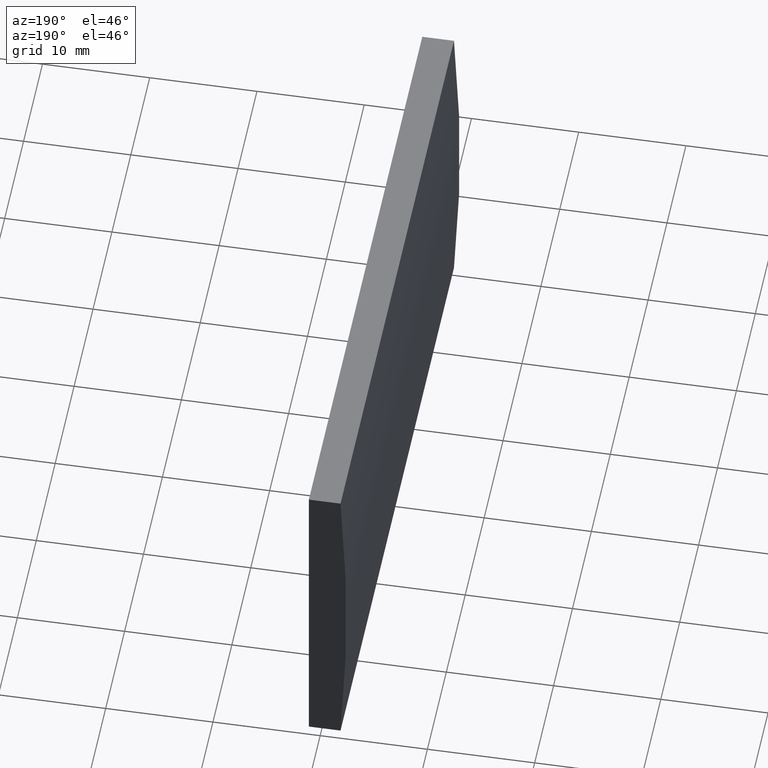
[diagram: clean part render]
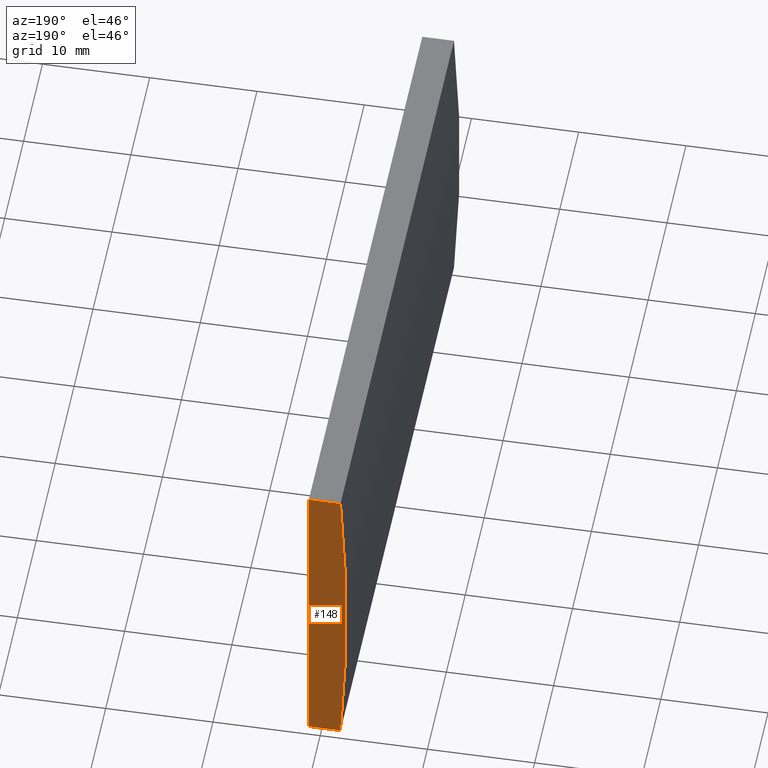
[diagram: same view with one face highlighted and labeled with its STEP entity id]
A machine part, auxiliary view. The second image highlights one B-rep face of the part: STEP entity #148.
In plain terms, the highlighted planar face has unit normal (0, 1, 0).
Its self-contained STEP definition (entity closure, byte-faithful):
#1 = CARTESIAN_POINT ( 'NONE',  ( -201.9000743854763000, 60.00000000000000000, 15.00000000000000000 ) ) ;
#17 = CARTESIAN_POINT ( 'NONE',  ( 4.355204334851265500, 60.00000000000000000, 4.286263797015675000E-017 ) ) ;
#22 = VERTEX_POINT ( 'NONE', #185 ) ;
#24 = PLANE ( 'NONE',  #34 ) ;
#27 = CARTESIAN_POINT ( 'NONE',  ( -201.9000743854763000, 60.00000000000000000, -15.00000000000000000 ) ) ;
#29 = CARTESIAN_POINT ( 'NONE',  ( -198.9447956651487500, 60.00000000000000000, -15.00000000000000400 ) ) ;
#33 = DIRECTION ( 'NONE',  ( 0.0000000000000000000, 1.000000000000000000, 0.0000000000000000000 ) ) ;
#34 = AXIS2_PLACEMENT_3D ( 'NONE', #17, #110, #147 ) ;
#36 = DIRECTION ( 'NONE',  ( -0.0000000000000000000, -0.0000000000000000000, -1.000000000000000000 ) ) ;
#54 = DIRECTION ( 'NONE',  ( 1.000000000000000000, 0.0000000000000000000, 0.0000000000000000000 ) ) ;
#58 = EDGE_CURVE ( 'NONE', #97, #139, #92, .T. ) ;
#67 = DIRECTION ( 'NONE',  ( 0.0000000000000000000, 0.0000000000000000000, 1.000000000000000000 ) ) ;
#81 = CARTESIAN_POINT ( 'NONE',  ( -198.9447956651487500, 60.00000000000000000, 15.00000000000000000 ) ) ;
#83 = AXIS2_PLACEMENT_3D ( 'NONE', #137, #33, #67 ) ;
#85 = ORIENTED_EDGE ( 'NONE', *, *, #95, .T. ) ;
#92 = LINE ( 'NONE', #188, #141 ) ;
#95 = EDGE_CURVE ( 'NONE', #139, #22, #198, .T. ) ;
#96 = ORIENTED_EDGE ( 'NONE', *, *, #58, .T. ) ;
#97 = VERTEX_POINT ( 'NONE', #1 ) ;
#100 = EDGE_LOOP ( 'NONE', ( #101, #96, #85, #161 ) ) ;
#101 = ORIENTED_EDGE ( 'NONE', *, *, #158, .T. ) ;
#103 = LINE ( 'NONE', #200, #142 ) ;
#105 = FACE_OUTER_BOUND ( 'NONE', #100, .T. ) ;
#110 = DIRECTION ( 'NONE',  ( 0.0000000000000000000, 1.000000000000000000, 0.0000000000000000000 ) ) ;
#133 = VERTEX_POINT ( 'NONE', #27 ) ;
#137 = CARTESIAN_POINT ( 'NONE',  ( 4.355204334851265500, 60.00000000000000000, 4.286263797015675000E-017 ) ) ;
#139 = VERTEX_POINT ( 'NONE', #81 ) ;
#141 = VECTOR ( 'NONE', #54, 1000.000000000000000 ) ;
#142 = VECTOR ( 'NONE', #150, 1000.000000000000000 ) ;
#147 = DIRECTION ( 'NONE',  ( 0.0000000000000000000, -0.0000000000000000000, 1.000000000000000000 ) ) ;
#148 = ADVANCED_FACE ( 'NONE', ( #105 ), #24, .T. ) ;
#150 = DIRECTION ( 'NONE',  ( -1.000000000000000000, -0.0000000000000000000, 1.173982991211425300E-015 ) ) ;
#158 = EDGE_CURVE ( 'NONE', #133, #97, #183, .T. ) ;
#161 = ORIENTED_EDGE ( 'NONE', *, *, #201, .T. ) ;
#167 = VECTOR ( 'NONE', #36, 1000.000000000000000 ) ;
#183 = CIRCLE ( 'NONE', #83, 206.8000000000000400 ) ;
#185 = CARTESIAN_POINT ( 'NONE',  ( -198.9447956651487500, 60.00000000000000000, -15.00000000000000400 ) ) ;
#188 = CARTESIAN_POINT ( 'NONE',  ( -201.9000743854763000, 60.00000000000000000, 15.00000000000000000 ) ) ;
#198 = LINE ( 'NONE', #29, #167 ) ;
#200 = CARTESIAN_POINT ( 'NONE',  ( -201.9000743854763000, 60.00000000000000000, -15.00000000000000000 ) ) ;
#201 = EDGE_CURVE ( 'NONE', #22, #133, #103, .T. ) ;